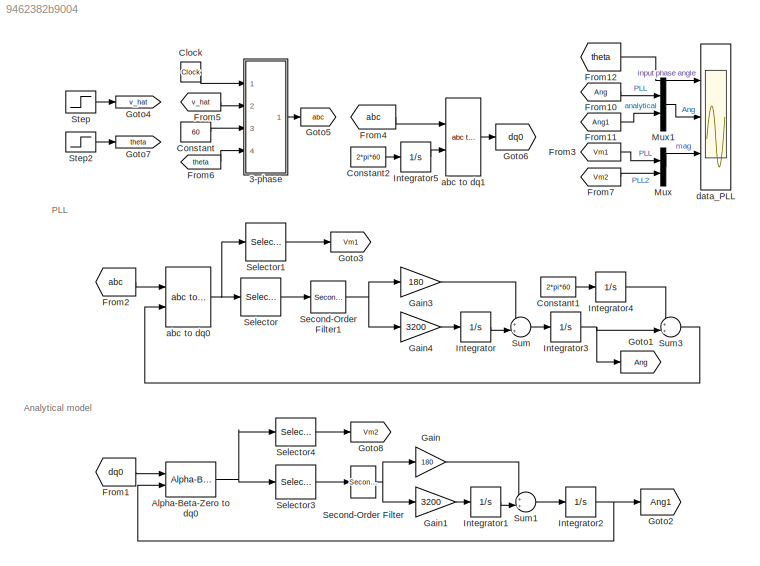
MODEL slx_9462382b9004
KIND model
CONFIG AbsTol = auto
CONFIG EnableMultiTasking = off
CONFIG FixedStep = 50e-6
CONFIG InitFcn = wf=2*pi*25;
CONFIG MaxStep = auto
CONFIG MinStep = auto
CONFIG RelTol = 1e-3
CONFIG SampleTimeConstraint = Unconstrained
CONFIG SolverName = ode3
CONFIG StartTime = 0.0
CONFIG StopTime = 3
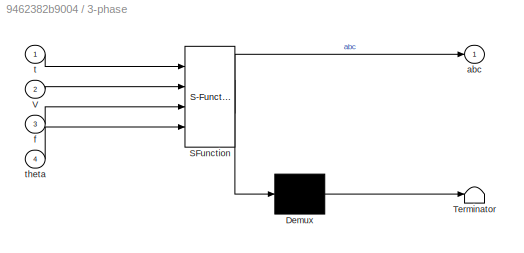
BLOCK [SubSystem] 3-phase
  ErrorFcn = Stateflow.Translate.translate
  PermitHierarchicalResolution = ExplicitOnly
  Ports = [4, 1]
  RequestExecContextInheritance = off
  SFBlockType = MATLAB Function
  TreatAsAtomicUnit = on
BLOCK [Demux] 3-phase/ Demux 
  Outputs = 1
  Ports = [1, 1]
BLOCK [S-Function] 3-phase/ SFunction 
  EnableBusSupport = on
  FunctionName = sf_sfun
  PortCounts = [4 2]
  Ports = [4, 2]
  SFcnIsStateOwnerBlock = off
  SFunctionDeploymentMode = off
  Tag = Stateflow S-Function 2
BLOCK [Terminator] 3-phase/ Terminator 
BLOCK [Inport] 3-phase/V
  Port = 2
BLOCK [Outport] 3-phase/abc
BLOCK [Inport] 3-phase/f
  Port = 3
BLOCK [Inport] 3-phase/t
BLOCK [Inport] 3-phase/theta
  Port = 4
BLOCK [Reference] Alpha-Beta-Zero to dq0  REF=spsAlphaBetaZerotodq0Lib/Alpha-Beta-Zero
to dq0
  Ports = [2, 1]
  SourceBlock = spsAlphaBetaZerotodq0Lib/Alpha-Beta-Zero\nto dq0
  SourceProductBaseCode = PS
  SourceType = Alpha-Beta-Zero to dq0 Transformation
BLOCK [Clock] Clock
BLOCK [Constant] Constant
  Value = 60
BLOCK [Constant] Constant1
  Value = 2*pi*60
BLOCK [Constant] Constant2
  Value = 2*pi*60
BLOCK [From] From1
  GotoTag = dq0
BLOCK [From] From10
  GotoTag = Ang
BLOCK [From] From11
  GotoTag = Ang1
BLOCK [From] From12
  GotoTag = theta
BLOCK [From] From2
  GotoTag = abc
BLOCK [From] From3
  GotoTag = Vm1
BLOCK [From] From4
  GotoTag = abc
BLOCK [From] From5
  GotoTag = v_hat
BLOCK [From] From6
  GotoTag = theta
BLOCK [From] From7
  GotoTag = Vm2
BLOCK [Gain] Gain
  Gain = 180
BLOCK [Gain] Gain1
  Gain = 3200
BLOCK [Gain] Gain3
  Gain = 180
BLOCK [Gain] Gain4
  Gain = 3200
BLOCK [Goto] Goto1
  GotoTag = Ang
BLOCK [Goto] Goto2
  GotoTag = Ang1
BLOCK [Goto] Goto3
  GotoTag = Vm1
BLOCK [Goto] Goto4
  GotoTag = v_hat
BLOCK [Goto] Goto5
  GotoTag = abc
BLOCK [Goto] Goto6
  GotoTag = dq0
BLOCK [Goto] Goto7
  GotoTag = theta
BLOCK [Goto] Goto8
  GotoTag = Vm2
BLOCK [Integrator] Integrator
  Ports = [1, 1]
BLOCK [Integrator] Integrator1
  Ports = [1, 1]
BLOCK [Integrator] Integrator2
  Ports = [1, 1]
BLOCK [Integrator] Integrator3
  Ports = [1, 1]
BLOCK [Integrator] Integrator4
  Ports = [1, 1]
BLOCK [Integrator] Integrator5
  Ports = [1, 1]
BLOCK [Mux] Mux
  DisplayOption = bar
  Inputs = 2
  Ports = [2, 1]
BLOCK [Mux] Mux1
  DisplayOption = bar
  Inputs = 2
  Ports = [2, 1]
BLOCK [Reference] Second-Order Filter  REF=spsSecondOrderFilterLib/Second-Order
Filter
  Ports = [1, 1]
  SourceBlock = spsSecondOrderFilterLib/Second-Order\nFilter
  SourceProductBaseCode = PS
  SourceType = Second-Order Filter
BLOCK [Reference] Second-Order Filter1  REF=spsSecondOrderFilterLib/Second-Order
Filter
  Ports = [1, 1]
  SourceBlock = spsSecondOrderFilterLib/Second-Order\nFilter
  SourceProductBaseCode = PS
  SourceType = Second-Order Filter
BLOCK [Selector] Selector
  IndexOptions = Index vector (dialog)
  Indices = [2]
  InputPortWidth = 3
  OutputSizes = 1
  Ports = [1, 1]
BLOCK [Selector] Selector1
  IndexOptions = Index vector (dialog)
  Indices = [1]
  InputPortWidth = 3
  OutputSizes = 1
  Ports = [1, 1]
BLOCK [Selector] Selector3
  IndexOptions = Index vector (dialog)
  Indices = [2]
  InputPortWidth = 3
  OutputSizes = 1
  Ports = [1, 1]
BLOCK [Selector] Selector4
  IndexOptions = Index vector (dialog)
  Indices = [1]
  InputPortWidth = 3
  OutputSizes = 1
  Ports = [1, 1]
BLOCK [Step] Step
  After = 0.7
  Before = 1
  SampleTime = 0
  Time = 2
BLOCK [Step] Step2
  After = pi/6
  SampleTime = 0
BLOCK [Sum] Sum
  Inputs = ++|
  Ports = [2, 1]
BLOCK [Sum] Sum1
  Inputs = ++|
  Ports = [2, 1]
BLOCK [Sum] Sum3
  Inputs = ++|
  Ports = [2, 1]
BLOCK [Reference] abc to dq0  REF=spsabctodq0Lib/abc to dq0
  Ports = [2, 1]
  SourceBlock = spsabctodq0Lib/abc to dq0
  SourceProductBaseCode = PS
  SourceType = abc to dq0 Transformation
BLOCK [Reference] abc to dq1  REF=spsabctodq0Lib/abc to dq0
  Ports = [2, 1]
  SourceBlock = spsabctodq0Lib/abc to dq0
  SourceProductBaseCode = PS
  SourceType = abc to dq0 Transformation
BLOCK [Scope] data_PLL
  Floating = off
  NumInputPorts = 3
  Ports = [3]
  ScopeSpecificationString = Simulink.scopes.TimeScopeBlockCfg('CurrentConfiguration', extmgr.ConfigurationSet(extmgr.Configuration('Core','General UI',true),extmgr.Configuration('Core','Source UI',true),extmgr.Configuration('Sources','WiredSimulink',true,'DataLoggingVariableName','data_PLL','DataLoggingSaveFormat','Array'),extmgr.Configuration('Visuals','Time Domain',true,'SerializedDisplays',{struct('MinYLimReal','-0.06545'...<+2813ch>
ANNOTATION (root): Analytical model
ANNOTATION (root): PLL
LINE 3-phase:1 -> Goto5:1
NET Alpha-Beta-Zero to dq0:1 -> Selector3:1, Selector4:1
LINE Clock:1 -> 3-phase:1
LINE Constant1:1 -> Integrator4:1
LINE Constant2:1 -> Integrator5:1
LINE Constant:1 -> 3-phase:3
LINE From10:1 -> Mux1:1
LINE From11:1 -> Mux1:2
LINE From12:1 -> data_PLL:1
LINE From1:1 -> Alpha-Beta-Zero to dq0:1
LINE From2:1 -> abc to dq0:1
LINE From3:1 -> Mux:1
LINE From4:1 -> abc to dq1:1
LINE From5:1 -> 3-phase:2
LINE From6:1 -> 3-phase:4
LINE From7:1 -> Mux:2
LINE Gain1:1 -> Integrator1:1
LINE Gain3:1 -> Sum:1
LINE Gain4:1 -> Integrator:1
LINE Gain:1 -> Sum1:1
LINE Integrator1:1 -> Sum1:2
NET Integrator2:1 -> Alpha-Beta-Zero to dq0:2, Goto2:1
NET Integrator3:1 -> Goto1:1, Sum3:2
LINE Integrator4:1 -> Sum3:1
LINE Integrator5:1 -> abc to dq1:2
LINE Integrator:1 -> Sum:2
LINE Mux1:1 -> data_PLL:2
LINE Mux:1 -> data_PLL:3
NET Second-Order Filter1:1 -> Gain3:1, Gain4:1
NET Second-Order Filter:1 -> Gain1:1, Gain:1
LINE Selector1:1 -> Goto3:1
LINE Selector3:1 -> Second-Order Filter:1
LINE Selector4:1 -> Goto8:1
LINE Selector:1 -> Second-Order Filter1:1
LINE Step2:1 -> Goto7:1
LINE Step:1 -> Goto4:1
LINE Sum1:1 -> Integrator2:1
LINE Sum3:1 -> abc to dq0:2
LINE Sum:1 -> Integrator3:1
NET abc to dq0:1 -> Selector1:1, Selector:1
LINE abc to dq1:1 -> Goto6:1
note: NET lines group one-source signal fan-out (src -> all destinations, sorted); 1:1 wires keep LINE
CHART 3-phase states=1 transitions=1
  STATE_LABEL 'eML_blk_kernel()'
  STATE_LABEL 'SCRIPT:\nfunction abc  = fcn(t, V, f, theta)\n\nif(t<10)\nalpha = 2*pi/3; \nva = V*cos(2*pi*f*t+theta);\nvb = V*cos(2*pi*f*t+theta-alpha);\nvc = V*cos(2*pi*f*t+theta+ alpha);\nelse\n    alpha = 2*pi/3; \nva = V*cos(2*pi*f*t+theta);\nvb = 0.9*V*cos(2*pi*f*t+theta-alpha);\nvc = V*cos(2*pi*f*t+theta+ alpha);\nend\n\n\nabc = [va; vb; vc]; \n\n\n'
CHART  states=0 transitions=0
